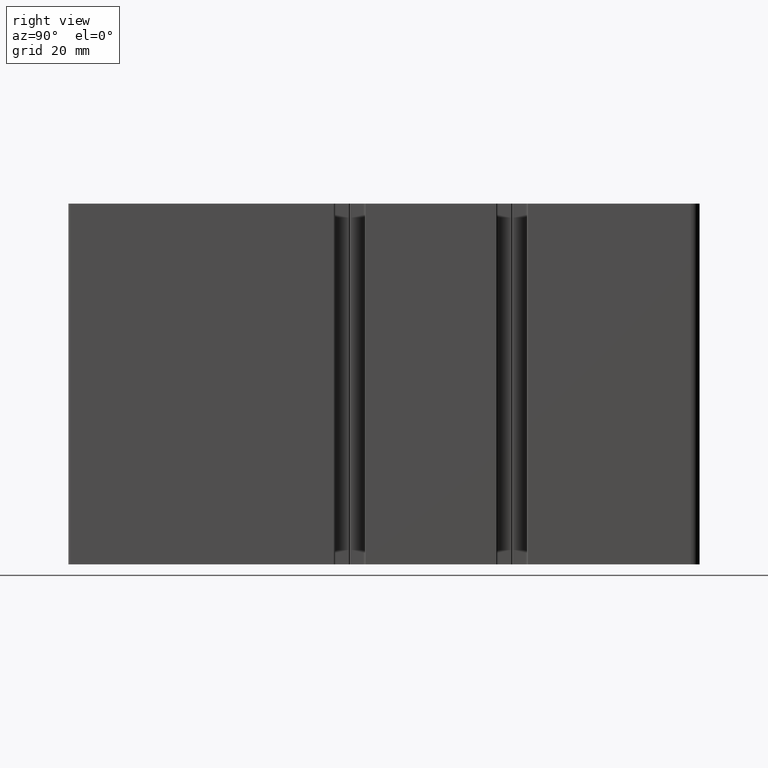
[diagram: clean part render]
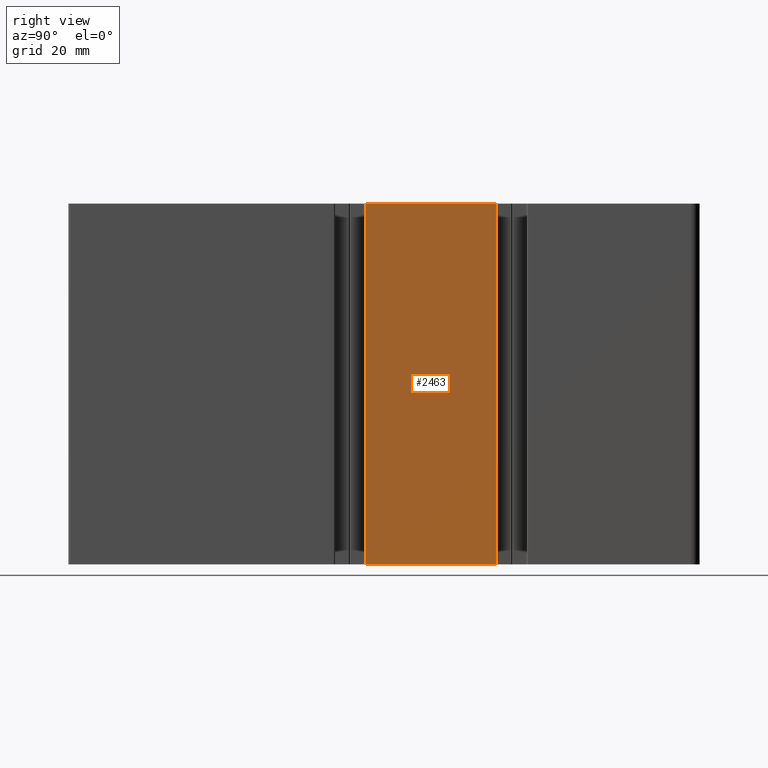
[diagram: same view with one face highlighted and labeled with its STEP entity id]
A machine part, right view. The second image highlights one B-rep face of the part: STEP entity #2463.
In plain terms, the highlighted planar face has unit normal (1, -0, 0).
Its self-contained STEP definition (entity closure, byte-faithful):
#267=FACE_OUTER_BOUND('',#392,.T.);
#392=EDGE_LOOP('',(#1924,#1925,#1926,#1927));
#619=LINE('',#4005,#880);
#620=LINE('',#4008,#881);
#621=LINE('',#4010,#882);
#622=LINE('',#4011,#883);
#880=VECTOR('',#3263,100.);
#881=VECTOR('',#3266,36.1);
#882=VECTOR('',#3267,36.1);
#883=VECTOR('',#3268,100.);
#1129=VERTEX_POINT('',#4001);
#1130=VERTEX_POINT('',#4003);
#1131=VERTEX_POINT('',#4007);
#1132=VERTEX_POINT('',#4009);
#1465=EDGE_CURVE('',#1129,#1130,#619,.T.);
#1466=EDGE_CURVE('',#1129,#1131,#620,.T.);
#1467=EDGE_CURVE('',#1132,#1130,#621,.T.);
#1468=EDGE_CURVE('',#1131,#1132,#622,.T.);
#1924=ORIENTED_EDGE('',*,*,#1466,.F.);
#1925=ORIENTED_EDGE('',*,*,#1465,.T.);
#1926=ORIENTED_EDGE('',*,*,#1467,.F.);
#1927=ORIENTED_EDGE('',*,*,#1468,.F.);
#2353=PLANE('',#2668);
#2463=ADVANCED_FACE('',(#267),#2353,.T.);
#2668=AXIS2_PLACEMENT_3D('',#4006,#3264,#3265);
#3263=DIRECTION('',(0.,0.,1.));
#3264=DIRECTION('center_axis',(1.,-7.38098409723096E-15,0.));
#3265=DIRECTION('ref_axis',(7.37188088351104E-15,1.,0.));
#3266=DIRECTION('',(-7.38098409723096E-15,-1.,0.));
#3267=DIRECTION('',(7.38098409723096E-15,1.,0.));
#3268=DIRECTION('',(0.,0.,1.));
#4001=CARTESIAN_POINT('',(2.9999999999998,18.0499999999999,0.));
#4003=CARTESIAN_POINT('',(2.9999999999998,18.0499999999999,100.));
#4005=CARTESIAN_POINT('',(2.9999999999998,18.0499999999999,0.));
#4006=CARTESIAN_POINT('Origin',(2.99999999999954,-18.0500000000001,0.));
#4007=CARTESIAN_POINT('',(2.99999999999954,-18.0500000000001,0.));
#4008=CARTESIAN_POINT('',(2.9999999999998,18.0499999999999,0.));
#4009=CARTESIAN_POINT('',(2.99999999999954,-18.0500000000001,100.));
#4010=CARTESIAN_POINT('',(2.9999999999998,18.0499999999999,100.));
#4011=CARTESIAN_POINT('',(2.99999999999954,-18.0500000000001,0.));